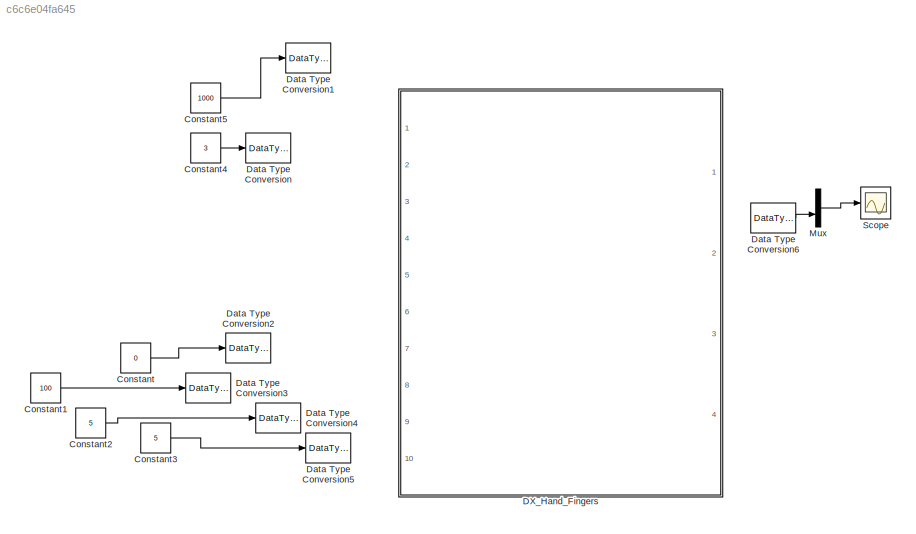
MODEL slx_c6c6e04fa645
KIND model
BLOCK [Constant] Constant
  Value = 0
BLOCK [Constant] Constant1
  Value = 100
BLOCK [Constant] Constant2
  Value = 5
BLOCK [Constant] Constant3
  Value = 5
BLOCK [Constant] Constant4
  Value = 3
BLOCK [Constant] Constant5
  Value = 1000
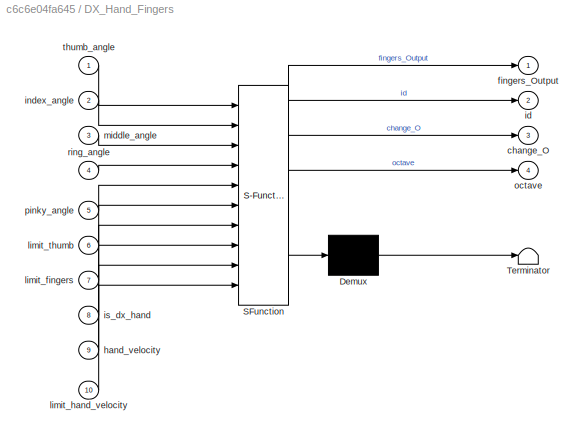
BLOCK [SubSystem] DX_Hand_Fingers 
  ErrorFcn = Stateflow.Translate.translate
  PermitHierarchicalResolution = ExplicitOnly
  Ports = [10, 4]
  RequestExecContextInheritance = off
  SFBlockType = Chart
  TreatAsAtomicUnit = on
BLOCK [Demux] DX_Hand_Fingers / Demux 
  Outputs = 1
  Ports = [1, 1]
BLOCK [S-Function] DX_Hand_Fingers / SFunction 
  EnableBusSupport = on
  FunctionName = sf_sfun
  PortCounts = [10 5]
  Ports = [10, 5]
  Tag = Stateflow S-Function DX_Hand 3
BLOCK [Terminator] DX_Hand_Fingers / Terminator 
BLOCK [Outport] DX_Hand_Fingers /change_O
  IconDisplay = Port number
  Port = 3
BLOCK [Outport] DX_Hand_Fingers /fingers_Output
  IconDisplay = Port number
BLOCK [Inport] DX_Hand_Fingers /hand_velocity
  IconDisplay = Port number
  Port = 9
BLOCK [Outport] DX_Hand_Fingers /id
  IconDisplay = Port number
  Port = 2
BLOCK [Inport] DX_Hand_Fingers /index_angle
  IconDisplay = Port number
  Port = 2
BLOCK [Inport] DX_Hand_Fingers /is_dx_hand
  IconDisplay = Port number
  Port = 8
BLOCK [Inport] DX_Hand_Fingers /limit_fingers
  IconDisplay = Port number
  Port = 7
BLOCK [Inport] DX_Hand_Fingers /limit_hand_velocity
  IconDisplay = Port number
  Port = 10
BLOCK [Inport] DX_Hand_Fingers /limit_thumb
  IconDisplay = Port number
  Port = 6
BLOCK [Inport] DX_Hand_Fingers /middle_angle
  IconDisplay = Port number
  Port = 3
BLOCK [Outport] DX_Hand_Fingers /octave
  IconDisplay = Port number
  Port = 4
BLOCK [Inport] DX_Hand_Fingers /pinky_angle
  IconDisplay = Port number
  Port = 5
BLOCK [Inport] DX_Hand_Fingers /ring_angle
  IconDisplay = Port number
  Port = 4
BLOCK [Inport] DX_Hand_Fingers /thumb_angle
  IconDisplay = Port number
BLOCK [DataTypeConversion] Data Type Conversion
  RndMeth = Floor
  SaturateOnIntegerOverflow = off
BLOCK [DataTypeConversion] Data Type Conversion1
  RndMeth = Floor
  SaturateOnIntegerOverflow = off
BLOCK [DataTypeConversion] Data Type Conversion2
  RndMeth = Floor
  SaturateOnIntegerOverflow = off
BLOCK [DataTypeConversion] Data Type Conversion3
  RndMeth = Floor
  SaturateOnIntegerOverflow = off
BLOCK [DataTypeConversion] Data Type Conversion4
  RndMeth = Floor
  SaturateOnIntegerOverflow = off
BLOCK [DataTypeConversion] Data Type Conversion5
  RndMeth = Floor
  SaturateOnIntegerOverflow = off
BLOCK [DataTypeConversion] Data Type Conversion6
  RndMeth = Floor
  SaturateOnIntegerOverflow = off
BLOCK [Mux] Mux
  DisplayOption = bar
  Inputs = 2
  Ports = [2, 1]
BLOCK [Scope] Scope
  DataFormat = StructureWithTime
  Floating = off
  NumInputPorts = 1
  Ports = [1]
  SampleTime = 0
  ShowLegends = off
LINE Constant1:1 -> Data Type Conversion3:1
LINE Constant2:1 -> Data Type Conversion4:1
LINE Constant3:1 -> Data Type Conversion5:1
LINE Constant4:1 -> Data Type Conversion:1
LINE Constant5:1 -> Data Type Conversion1:1
LINE Constant:1 -> Data Type Conversion2:1
LINE Data Type Conversion6:1 -> Mux:2
LINE Mux:1 -> Scope:1
